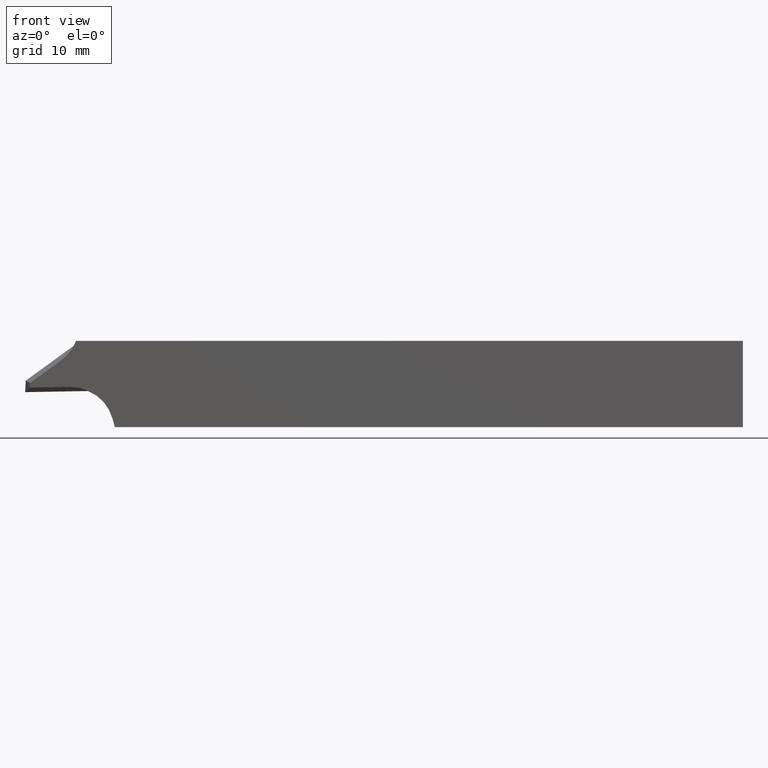
[diagram: clean part render]
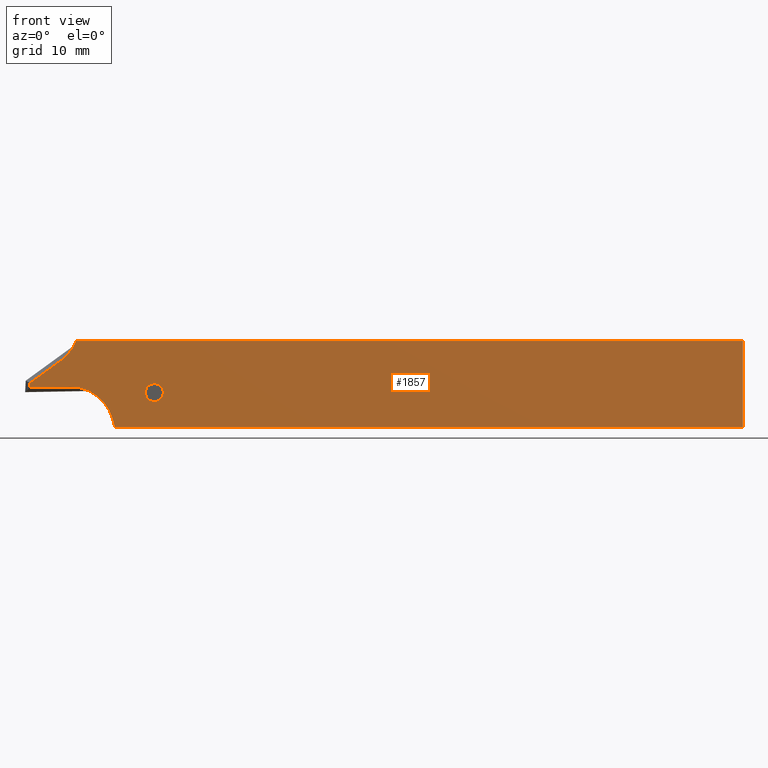
[diagram: same view with one face highlighted and labeled with its STEP entity id]
A machine part, front view. The second image highlights one B-rep face of the part: STEP entity #1857.
In plain terms, the highlighted planar face has unit normal (0, 1, 0).
Its self-contained STEP definition (entity closure, byte-faithful):
#1 = DIRECTION ( 'NONE',  ( -0.0000000000000000000, -1.000000000000000000, -0.0000000000000000000 ) ) ;
#8 = EDGE_CURVE ( 'NONE', #524, #141, #1280, .T. ) ;
#29 = AXIS2_PLACEMENT_3D ( 'NONE', #918, #2266, #1106 ) ;
#65 = VERTEX_POINT ( 'NONE', #1888 ) ;
#121 = CARTESIAN_POINT ( 'NONE',  ( -93.68371229827116100, -12.00000000000001100, -18.40367457411554500 ) ) ;
#139 = CARTESIAN_POINT ( 'NONE',  ( 0.0000000000000000000, -12.00000000000000000, -12.00000000000000000 ) ) ;
#141 = VERTEX_POINT ( 'NONE', #962 ) ;
#176 = EDGE_LOOP ( 'NONE', ( #2075, #2200, #1335, #2232, #1198, #2016, #2197, #1055, #734, #362 ) ) ;
#182 = LINE ( 'NONE', #1025, #2145 ) ;
#189 = EDGE_CURVE ( 'NONE', #1258, #1959, #2167, .T. ) ;
#212 = VERTEX_POINT ( 'NONE', #348 ) ;
#273 = AXIS2_PLACEMENT_3D ( 'NONE', #393, #2113, #573 ) ;
#285 = DIRECTION ( 'NONE',  ( -0.9998476951563911600, 0.0000000000000000000, -0.01745240643728323100 ) ) ;
#348 = CARTESIAN_POINT ( 'NONE',  ( -99.31260317526046300, -12.00000000000000000, -17.86331827457313500 ) ) ;
#354 = FACE_OUTER_BOUND ( 'NONE', #176, .T. ) ;
#362 = ORIENTED_EDGE ( 'NONE', *, *, #1165, .F. ) ;
#365 = AXIS2_PLACEMENT_3D ( 'NONE', #2270, #2453, #1309 ) ;
#385 = EDGE_CURVE ( 'NONE', #2235, #212, #2317, .T. ) ;
#393 = CARTESIAN_POINT ( 'NONE',  ( -98.59943851816717600, -12.00000000000001100, -9.805159158975778100 ) ) ;
#408 = CARTESIAN_POINT ( 'NONE',  ( -99.34605315448396800, -12.00000000000000000, -18.50158190033860400 ) ) ;
#422 = EDGE_LOOP ( 'NONE', ( #1124, #866 ) ) ;
#430 = VERTEX_POINT ( 'NONE', #2293 ) ;
#436 = VERTEX_POINT ( 'NONE', #1505 ) ;
#448 = LINE ( 'NONE', #976, #532 ) ;
#470 = LINE ( 'NONE', #1781, #1422 ) ;
#524 = VERTEX_POINT ( 'NONE', #1307 ) ;
#532 = VECTOR ( 'NONE', #2325, 1000.000000000000100 ) ;
#549 = LINE ( 'NONE', #2072, #2022 ) ;
#554 = DIRECTION ( 'NONE',  ( 0.05233595624294797700, 0.0000000000000000000, 0.9986295347545736100 ) ) ;
#573 = DIRECTION ( 'NONE',  ( 0.0000000000000000000, 0.0000000000000000000, -1.000000000000000000 ) ) ;
#584 = EDGE_CURVE ( 'NONE', #2190, #436, #639, .T. ) ;
#619 = CIRCLE ( 'NONE', #29, 6.100000000000001400 ) ;
#639 = CIRCLE ( 'NONE', #954, 6.100000000000001400 ) ;
#642 = CARTESIAN_POINT ( 'NONE',  ( -82.00000000000000000, -12.00000000000000000, -19.19999999999998200 ) ) ;
#650 = VECTOR ( 'NONE', #1396, 1000.000000000000000 ) ;
#671 = VERTEX_POINT ( 'NONE', #944 ) ;
#734 = ORIENTED_EDGE ( 'NONE', *, *, #1145, .F. ) ;
#826 = DIRECTION ( 'NONE',  ( 0.0000000000000000000, 0.0000000000000000000, 1.000000000000000000 ) ) ;
#852 = CIRCLE ( 'NONE', #2426, 1.250000000000001100 ) ;
#861 = FACE_BOUND ( 'NONE', #422, .T. ) ;
#866 = ORIENTED_EDGE ( 'NONE', *, *, #189, .F. ) ;
#879 = EDGE_CURVE ( 'NONE', #1841, #141, #2179, .T. ) ;
#918 = CARTESIAN_POINT ( 'NONE',  ( -93.68371229827116100, -12.00000000000001100, -24.50367457411554600 ) ) ;
#944 = CARTESIAN_POINT ( 'NONE',  ( -2.914335439641035900E-015, -12.00000000000000000, -24.00000000000000000 ) ) ;
#954 = AXIS2_PLACEMENT_3D ( 'NONE', #2291, #1, #1329 ) ;
#962 = CARTESIAN_POINT ( 'NONE',  ( -92.90798231763534400, -12.00000000000001100, -11.99999999999998900 ) ) ;
#976 = CARTESIAN_POINT ( 'NONE',  ( -37.22982609094312100, -12.00000000000000000, 27.24245953386008500 ) ) ;
#1025 = CARTESIAN_POINT ( 'NONE',  ( -0.1262054778396482500, -12.00000000000000000, -16.76969301697494400 ) ) ;
#1055 = ORIENTED_EDGE ( 'NONE', *, *, #584, .F. ) ;
#1061 = VECTOR ( 'NONE', #2063, 999.9999999999998900 ) ;
#1097 = DIRECTION ( 'NONE',  ( -0.0000000000000000000, -1.000000000000000000, -0.0000000000000000000 ) ) ;
#1106 = DIRECTION ( 'NONE',  ( 0.0000000000000000000, 0.0000000000000000000, -1.000000000000000000 ) ) ;
#1112 = PLANE ( 'NONE',  #365 ) ;
#1124 = ORIENTED_EDGE ( 'NONE', *, *, #1491, .F. ) ;
#1145 = EDGE_CURVE ( 'NONE', #65, #2190, #619, .T. ) ;
#1165 = EDGE_CURVE ( 'NONE', #430, #65, #2076, .T. ) ;
#1197 = EDGE_CURVE ( 'NONE', #671, #1841, #549, .T. ) ;
#1198 = ORIENTED_EDGE ( 'NONE', *, *, #2238, .F. ) ;
#1258 = VERTEX_POINT ( 'NONE', #1884 ) ;
#1280 = CIRCLE ( 'NONE', #273, 6.100000000000001400 ) ;
#1307 = CARTESIAN_POINT ( 'NONE',  ( -95.01394847918307100, -12.00000000000001100, -14.74016282466294900 ) ) ;
#1309 = DIRECTION ( 'NONE',  ( -2.428612866367529900E-016, 0.0000000000000000000, -1.000000000000000000 ) ) ;
#1329 = DIRECTION ( 'NONE',  ( 0.0000000000000000000, 0.0000000000000000000, -1.000000000000000000 ) ) ;
#1331 = CARTESIAN_POINT ( 'NONE',  ( -99.36130971469961500, -12.00000000000000000, -18.79269441119771500 ) ) ;
#1332 = CARTESIAN_POINT ( 'NONE',  ( -82.00000000000000000, -12.00000000000000000, -17.94999999999998200 ) ) ;
#1335 = ORIENTED_EDGE ( 'NONE', *, *, #879, .T. ) ;
#1396 = DIRECTION ( 'NONE',  ( -1.000000000000000000, 0.0000000000000000000, 1.214306433183765000E-016 ) ) ;
#1422 = VECTOR ( 'NONE', #1963, 1000.000000000000000 ) ;
#1491 = EDGE_CURVE ( 'NONE', #1959, #1258, #852, .T. ) ;
#1505 = CARTESIAN_POINT ( 'NONE',  ( -93.79017197753857700, -12.00000000000000000, -18.40460363366155900 ) ) ;
#1568 = AXIS2_PLACEMENT_3D ( 'NONE', #2053, #1097, #2255 ) ;
#1611 = EDGE_CURVE ( 'NONE', #430, #671, #470, .T. ) ;
#1662 = EDGE_CURVE ( 'NONE', #436, #2235, #182, .T. ) ;
#1689 = DIRECTION ( 'NONE',  ( 2.428612866367529900E-016, 0.0000000000000000000, 1.000000000000000000 ) ) ;
#1781 = CARTESIAN_POINT ( 'NONE',  ( -2.914335439641035900E-015, -12.00000000000000000, -24.00000000000000000 ) ) ;
#1792 = CARTESIAN_POINT ( 'NONE',  ( 0.0000000000000000000, -12.00000000000000000, -12.00000000000000000 ) ) ;
#1841 = VERTEX_POINT ( 'NONE', #139 ) ;
#1857 = ADVANCED_FACE ( 'NONE', ( #861, #354 ), #1112, .F. ) ;
#1859 = VECTOR ( 'NONE', #554, 1000.000000000000200 ) ;
#1884 = CARTESIAN_POINT ( 'NONE',  ( -82.00000000000000000, -12.00000000000000000, -20.44999999999998200 ) ) ;
#1888 = CARTESIAN_POINT ( 'NONE',  ( -87.79156475790783500, -12.00000000000001100, -22.92487839899018800 ) ) ;
#1959 = VERTEX_POINT ( 'NONE', #1332 ) ;
#1963 = DIRECTION ( 'NONE',  ( 1.000000000000000000, 0.0000000000000000000, -1.203966067220176700E-016 ) ) ;
#1969 = DIRECTION ( 'NONE',  ( -0.0000000000000000000, -1.000000000000000000, -0.0000000000000000000 ) ) ;
#2016 = ORIENTED_EDGE ( 'NONE', *, *, #385, .F. ) ;
#2022 = VECTOR ( 'NONE', #1689, 1000.000000000000000 ) ;
#2053 = CARTESIAN_POINT ( 'NONE',  ( -82.00000000000000000, -12.00000000000000000, -19.19999999999998200 ) ) ;
#2063 = DIRECTION ( 'NONE',  ( -0.2588190451025182400, 0.0000000000000000000, 0.9659258262890690900 ) ) ;
#2072 = CARTESIAN_POINT ( 'NONE',  ( -2.914335439641035900E-015, -12.00000000000000000, -24.00000000000000000 ) ) ;
#2075 = ORIENTED_EDGE ( 'NONE', *, *, #1611, .T. ) ;
#2076 = LINE ( 'NONE', #2259, #1061 ) ;
#2113 = DIRECTION ( 'NONE',  ( -0.0000000000000000000, -1.000000000000000000, -0.0000000000000000000 ) ) ;
#2145 = VECTOR ( 'NONE', #285, 1000.000000000000200 ) ;
#2167 = CIRCLE ( 'NONE', #1568, 1.250000000000001100 ) ;
#2179 = LINE ( 'NONE', #1792, #650 ) ;
#2190 = VERTEX_POINT ( 'NONE', #121 ) ;
#2197 = ORIENTED_EDGE ( 'NONE', *, *, #1662, .F. ) ;
#2200 = ORIENTED_EDGE ( 'NONE', *, *, #1197, .T. ) ;
#2232 = ORIENTED_EDGE ( 'NONE', *, *, #8, .F. ) ;
#2235 = VERTEX_POINT ( 'NONE', #408 ) ;
#2238 = EDGE_CURVE ( 'NONE', #212, #524, #448, .T. ) ;
#2255 = DIRECTION ( 'NONE',  ( 0.0000000000000000000, 0.0000000000000000000, 1.000000000000000000 ) ) ;
#2259 = CARTESIAN_POINT ( 'NONE',  ( -81.64186463786900600, -12.00000000000000000, -45.87587169828780300 ) ) ;
#2266 = DIRECTION ( 'NONE',  ( -0.0000000000000000000, -1.000000000000000000, -0.0000000000000000000 ) ) ;
#2270 = CARTESIAN_POINT ( 'NONE',  ( -2.914335439641035900E-015, -12.00000000000000000, -24.00000000000000000 ) ) ;
#2291 = CARTESIAN_POINT ( 'NONE',  ( -93.68371229827116100, -12.00000000000001100, -24.50367457411554600 ) ) ;
#2293 = CARTESIAN_POINT ( 'NONE',  ( -87.50348679315200700, -12.00000000000000000, -23.99999999999998900 ) ) ;
#2317 = LINE ( 'NONE', #1331, #1859 ) ;
#2325 = DIRECTION ( 'NONE',  ( 0.8090169943749473400, 0.0000000000000000000, 0.5877852522924733600 ) ) ;
#2426 = AXIS2_PLACEMENT_3D ( 'NONE', #642, #1969, #826 ) ;
#2453 = DIRECTION ( 'NONE',  ( 0.0000000000000000000, 1.000000000000000000, 0.0000000000000000000 ) ) ;